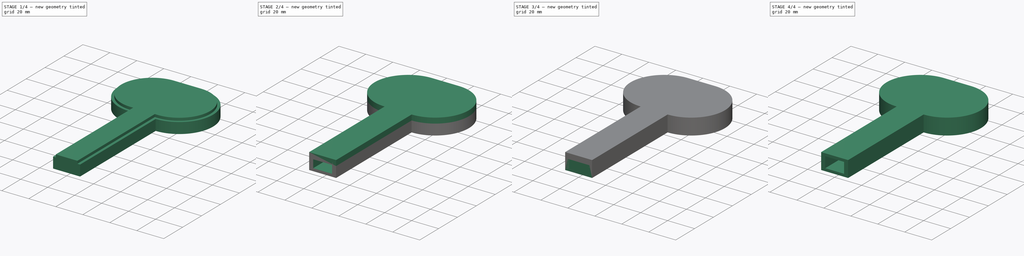
[diagram: build sequence overview — one tinted view per stage of 4, left to right]
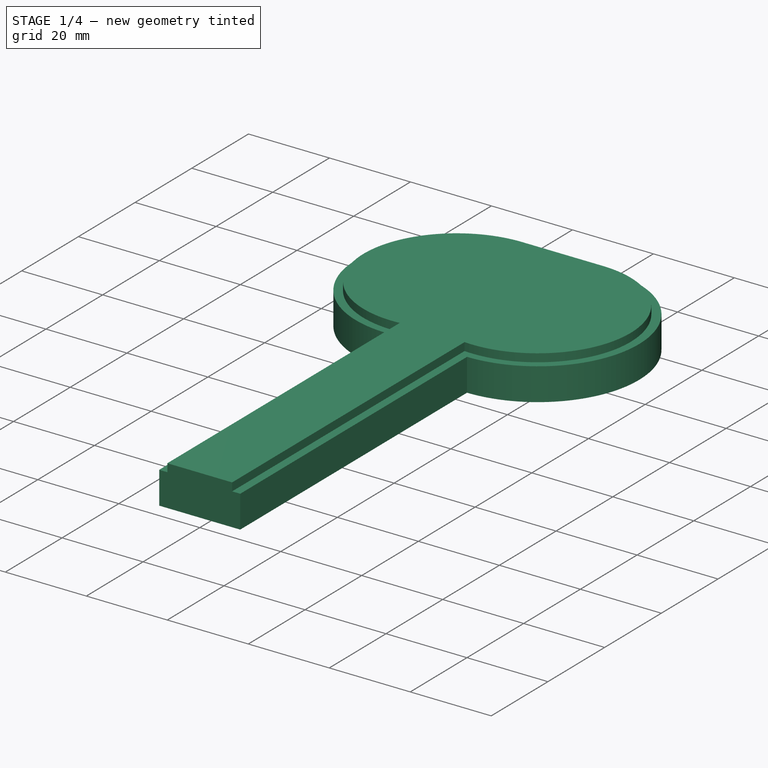
[diagram: stage 1 of 4 — iso view after this stage's code; geometry added in this stage tinted green]
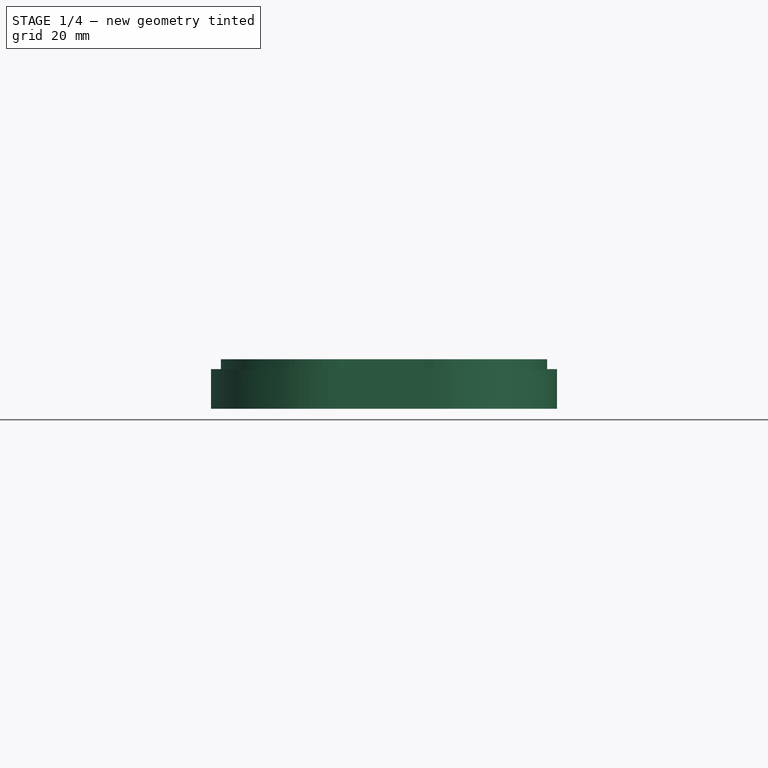
[diagram: stage 1 of 4 — front view after this stage's code; geometry added in this stage tinted green]
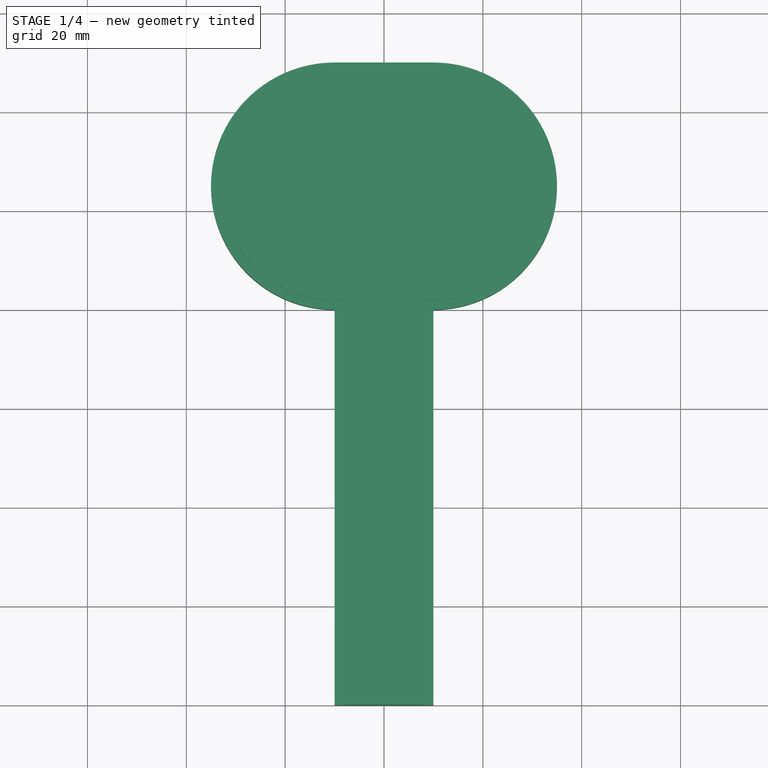
[diagram: stage 1 of 4 — top view after this stage's code; geometry added in this stage tinted green]
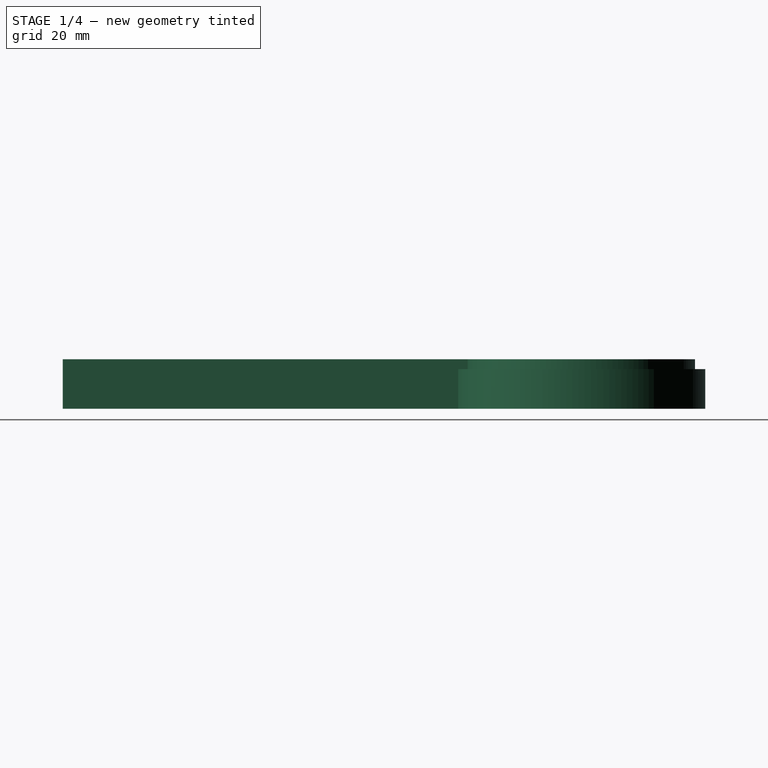
[diagram: stage 1 of 4 — right view after this stage's code; geometry added in this stage tinted green]
FCSTD DOCUMENT  (FreeCAD 0.19R24291 (Git))
Label: double_probe_body
License: All rights reserved
LicenseURL: http://en.wikipedia.org/wiki/All_rights_reserved
objects: Sketcher::SketchObject×8, PartDesign::Pad×5, PartDesign::Pocket×3, PartDesign::Body×3, Part::Cut×1
note: 28 computed .brp shape members not serialized (recipe doc carries the construction recipe); baked Part::Feature solids carry a one-line shape summary decoded from their .brp

FEATURE [Sketcher::SketchObject] Sketch005
  FullyConstrained = true
  MapMode = 5
  Support = -> [XY_Plane002]
  sketch-geometry (6):
    g0: ArcOfCircle CenterX=-10 CenterY=25 CenterZ=0 NormalX=0 NormalY=0 NormalZ=1 AngleXU=0 Radius=25 StartAngle=1.5708 EndAngle=4.71239
    g1: ArcOfCircle CenterX=10 CenterY=25 CenterZ=0 NormalX=0 NormalY=0 NormalZ=1 AngleXU=0 Radius=25 StartAngle=4.71239 EndAngle=7.85398
    g2: LineSegment StartX=-10 StartY=50 StartZ=0 EndX=10 EndY=50 EndZ=0
    g3: LineSegment StartX=10 StartY=0 StartZ=0 EndX=10 EndY=-80 EndZ=0
    g4: LineSegment StartX=10 StartY=-80 StartZ=0 EndX=-10 EndY=-80 EndZ=0
    g5: LineSegment StartX=-10 StartY=-80 StartZ=0 EndX=-10 EndY=0 EndZ=0
  constraints (16):
    c: Tangent(g0,g2) = 1.5708
    c: Tangent(g2,g1) = 1.5708
    c: Symmetric(g0,g1,g-2)
    c: Coincident(g3,g4)
    c: Coincident(g4,g5)
    c: Vertical(g3)
    c: Vertical(g5)
    c: Radius(g0) = 25
    c: DistanceX(g0,g1) = 20
    c: DistanceY(g5,g5) = 80
    c: Symmetric(g3,g4,g-2)
    c: Coincident(g3,g1)
    c: Coincident(g5,g0)
    c: Radius(g1) = 25
    c: DistanceX(g4,g4) = 20
    c: PointOnObject(g1,g-1)
FEATURE [PartDesign::Pad] Pad003
  Direction = (1,1,1)
  Length = 8
  Length2 = 100
  Profile = -> Sketch005
  Refine = true
  Type = 0
FEATURE [Sketcher::SketchObject] Sketch006
  AttachmentOffset = pos=(0,0,10) rot=(0,0,1;0rad)
  ExternalGeometry = -> [Pad003]
  FullyConstrained = true
  MapMode = 5
  Placement = pos=(0,0,10) rot=(0,0,1;0rad)
  Support = -> [XY_Plane002]
  sketch-geometry (6):
    g0: ArcOfCircle CenterX=-10 CenterY=24.7945 CenterZ=0 NormalX=0 NormalY=0 NormalZ=1 AngleXU=0 Radius=22 StartAngle=1.5708 EndAngle=4.84918
    g1: ArcOfCircle CenterX=10 CenterY=24.7945 CenterZ=0 NormalX=0 NormalY=0 NormalZ=1 AngleXU=0 Radius=22 StartAngle=4.5756 EndAngle=7.85398
    g2: LineSegment StartX=-10 StartY=46.7945 StartZ=0 EndX=10 EndY=46.7945 EndZ=0
    g3: LineSegment StartX=7 StartY=3 StartZ=0 EndX=7 EndY=-80 EndZ=0
    g4: LineSegment StartX=7 StartY=-80 StartZ=0 EndX=-7 EndY=-80 EndZ=0
    g5: LineSegment StartX=-7 StartY=-80 StartZ=0 EndX=-7 EndY=3 EndZ=0
  constraints (16):
    c: Tangent(g0,g2) = 1.5708
    c: Tangent(g2,g1) = 1.5708
    c: Symmetric(g0,g1,g-2)
    c: Coincident(g3,g4)
    c: Coincident(g4,g5)
    c: Vertical(g3)
    c: Vertical(g5)
    c: Radius(g0) = 22
    c: DistanceX(g0,g1) = 20
    c: DistanceY(g5,g5) = 83
    c: Symmetric(g3,g4,g-2)
    c: Radius(g1) = 22
    c: DistanceX(g4,g4) = 14
    c: DistanceY(g3,g-4) = 0
    c: Coincident(g3,g1)
    c: Coincident(g0,g5)
FEATURE [Sketcher::SketchObject] Sketch007
  ExternalGeometry = -> [Pad003]
  FullyConstrained = true
  MapMode = 5
  Support = -> [XY_Plane002]
  sketch-geometry (6):
    g0: ArcOfCircle CenterX=-10 CenterY=24.9129 CenterZ=0 NormalX=0 NormalY=0 NormalZ=1 AngleXU=0 Radius=23 StartAngle=1.5708 EndAngle=4.79946
    g1: ArcOfCircle CenterX=10 CenterY=24.9129 CenterZ=0 NormalX=0 NormalY=0 NormalZ=1 AngleXU=0 Radius=23 StartAngle=4.62532 EndAngle=7.85398
    g2: LineSegment StartX=-10 StartY=47.9129 StartZ=0 EndX=10 EndY=47.9129 EndZ=0
    g3: LineSegment StartX=8 StartY=2 StartZ=0 EndX=8 EndY=-80 EndZ=0
    g4: LineSegment StartX=8 StartY=-80 StartZ=0 EndX=-8 EndY=-80 EndZ=0
    g5: LineSegment StartX=-8 StartY=-80 StartZ=0 EndX=-8 EndY=2 EndZ=0
  constraints (16):
    c: Tangent(g0,g2) = 1.5708
    c: Tangent(g2,g1) = 1.5708
    c: Symmetric(g0,g1,g-2)
    c: Coincident(g3,g4)
    c: Coincident(g4,g5)
    c: Vertical(g3)
    c: Vertical(g5)
    c: Radius(g0) = 23
    c: DistanceX(g0,g1) = 20
    c: DistanceY(g5,g5) = 82
    c: Symmetric(g3,g4,g-2)
    c: Radius(g1) = 23
    c: DistanceX(g4,g4) = 16
    c: DistanceY(g3,g-4) = 0
    c: Coincident(g3,g1)
    c: Coincident(g0,g5)
FEATURE [PartDesign::Pad] Pad004
  BaseFeature = -> Pad003
  Direction = (1,1,1)
  Length = 10
  Length2 = 100
  Profile = -> Sketch007
  Refine = true
  Type = 0
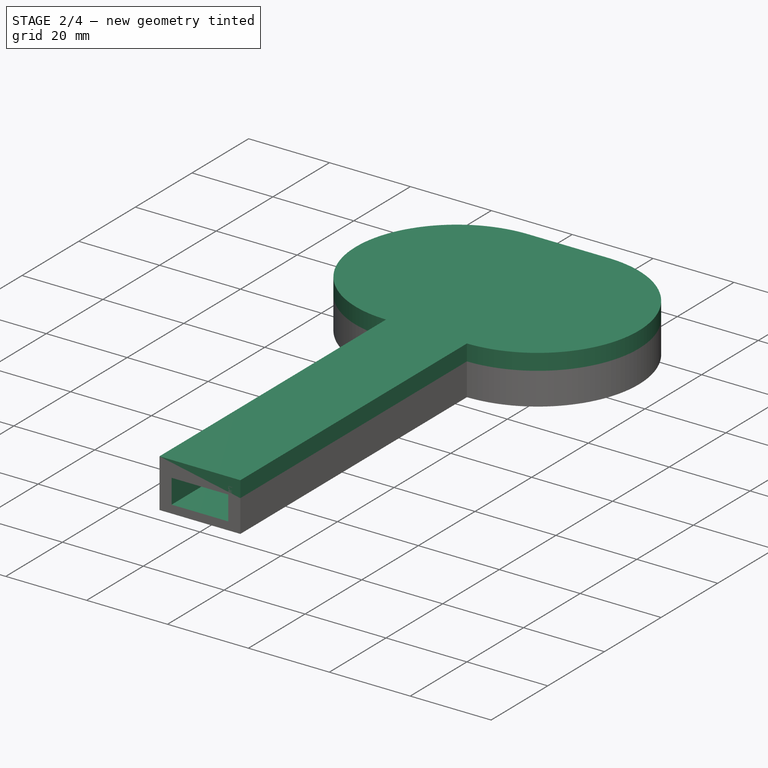
[diagram: stage 2 of 4 — iso view after this stage's code; geometry added in this stage tinted green]
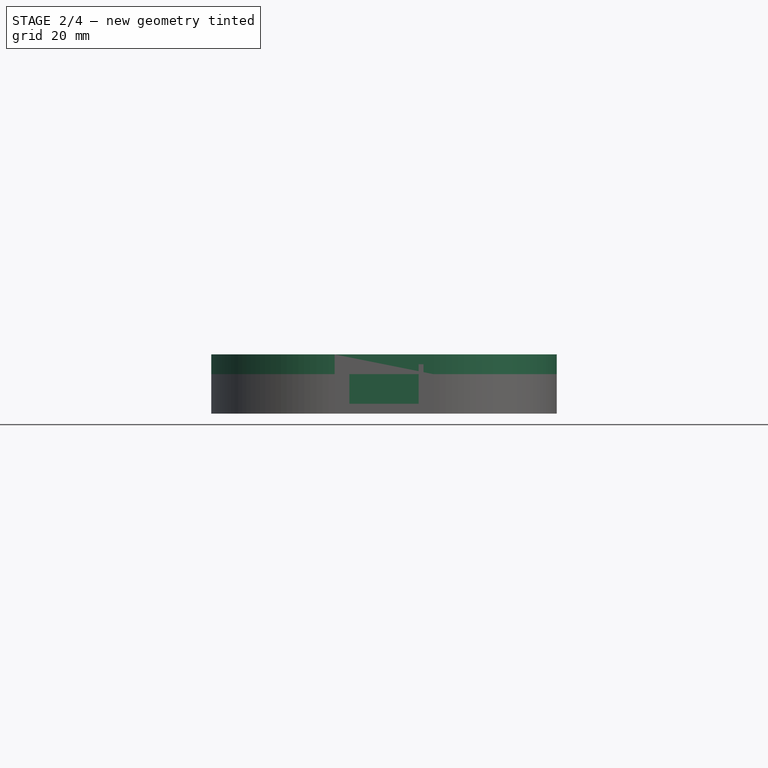
[diagram: stage 2 of 4 — front view after this stage's code; geometry added in this stage tinted green]
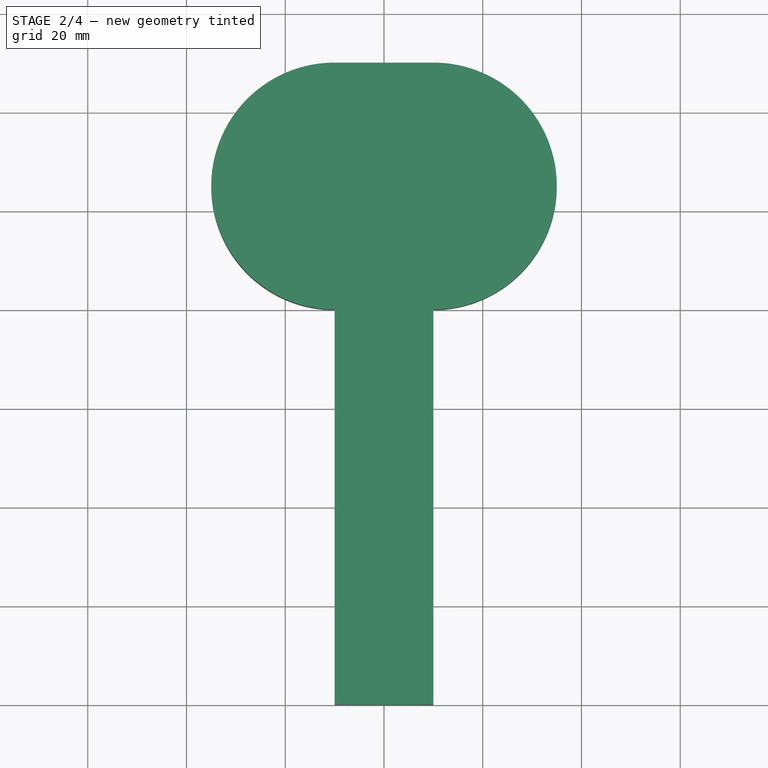
[diagram: stage 2 of 4 — top view after this stage's code; geometry added in this stage tinted green]
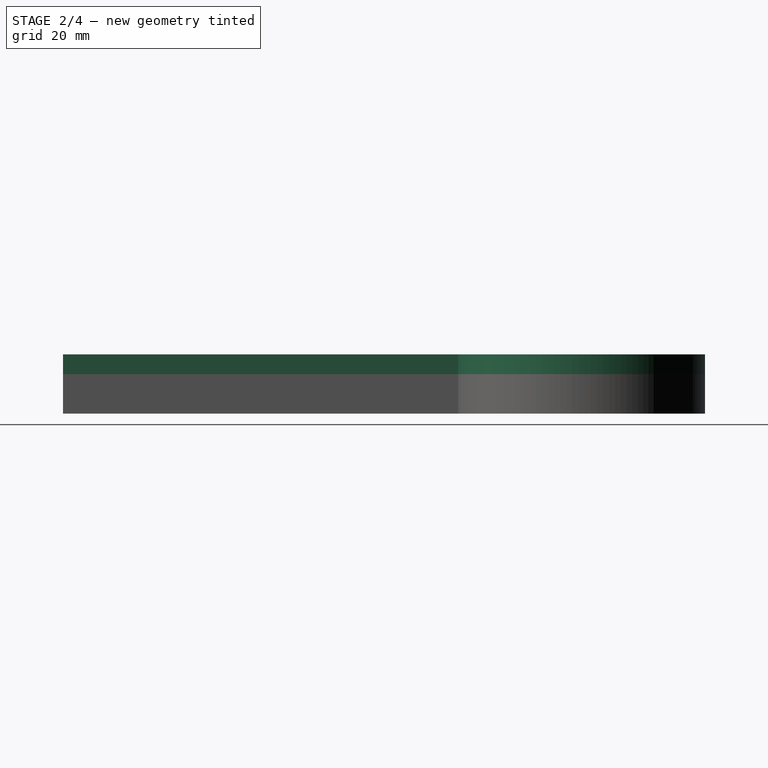
[diagram: stage 2 of 4 — right view after this stage's code; geometry added in this stage tinted green]
FEATURE [PartDesign::Body] Body  label="Body_groove"
  Group = -> [Sketch,Pad,Sketch001,Pad001,Sketch002,Pocket]
  Origin = -> Origin
  Tip = -> Pocket
FEATURE [Sketcher::SketchObject] Sketch003
  AttachmentOffset = pos=(0,0,8) rot=(0,0,1;0rad)
  FullyConstrained = true
  MapMode = 5
  Placement = pos=(0,0,8) rot=(0,0,1;0rad)
  Support = -> [XY_Plane001]
  sketch-geometry (6):
    g0: ArcOfCircle CenterX=-10 CenterY=25 CenterZ=0 NormalX=0 NormalY=0 NormalZ=1 AngleXU=0 Radius=25 StartAngle=1.5708 EndAngle=4.71239
    g1: ArcOfCircle CenterX=10 CenterY=25 CenterZ=0 NormalX=0 NormalY=0 NormalZ=1 AngleXU=0 Radius=25 StartAngle=4.71239 EndAngle=7.85398
    g2: LineSegment StartX=-10 StartY=50 StartZ=0 EndX=10 EndY=50 EndZ=0
    g3: LineSegment StartX=10 StartY=0 StartZ=0 EndX=10 EndY=-80 EndZ=0
    g4: LineSegment StartX=10 StartY=-80 StartZ=0 EndX=-10 EndY=-80 EndZ=0
    g5: LineSegment StartX=-10 StartY=-80 StartZ=0 EndX=-10 EndY=0 EndZ=0
  constraints (16):
    c: Tangent(g0,g2) = 1.5708
    c: Tangent(g2,g1) = 1.5708
    c: Symmetric(g0,g1,g-2)
    c: Coincident(g3,g4)
    c: Coincident(g4,g5)
    c: Vertical(g3)
    c: Vertical(g5)
    c: Radius(g0) = 25
    c: DistanceX(g0,g1) = 20
    c: DistanceY(g5,g5) = 80
    c: Symmetric(g3,g4,g-2)
    c: Coincident(g3,g1)
    c: Coincident(g5,g0)
    c: Radius(g1) = 25
    c: DistanceX(g4,g4) = 20
    c: PointOnObject(g1,g-1)
FEATURE [PartDesign::Pad] Pad002
  Direction = (1,1,1)
  Length = 4
  Length2 = 100
  Profile = -> Sketch003
  Refine = true
  Type = 0
FEATURE [PartDesign::Pocket] Pocket002
  BaseFeature = -> Pad004
  Length = 8
  Length2 = 100
  Profile = -> Sketch006
  Refine = true
  Type = 0
FEATURE [PartDesign::Body] Body002  label="Body"
  Group = -> [Sketch005,Pad003,Sketch007,Pad004,Sketch006,Pocket002]
  Origin = -> Origin002
  Tip = -> Pocket002
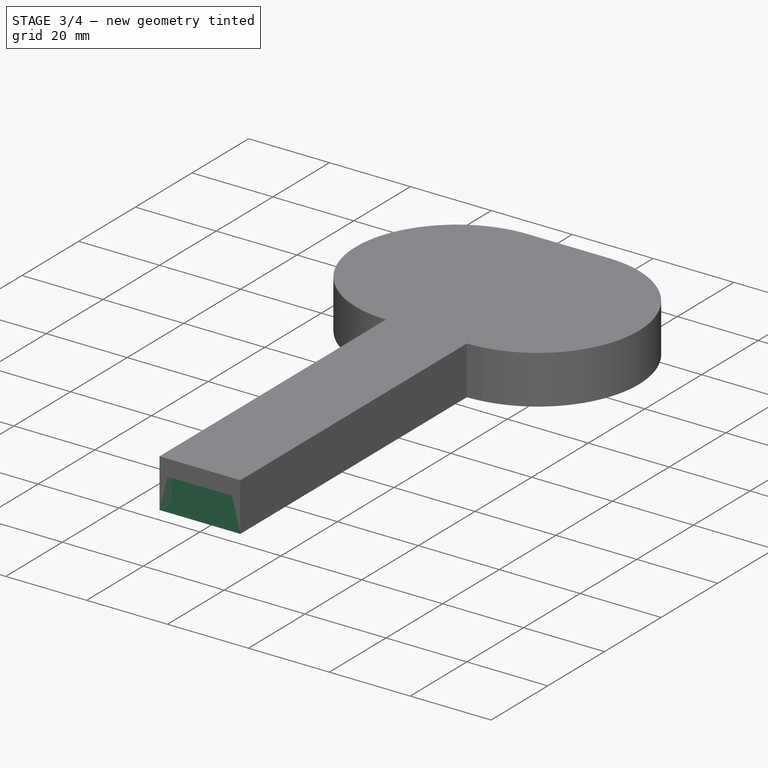
[diagram: stage 3 of 4 — iso view after this stage's code; geometry added in this stage tinted green]
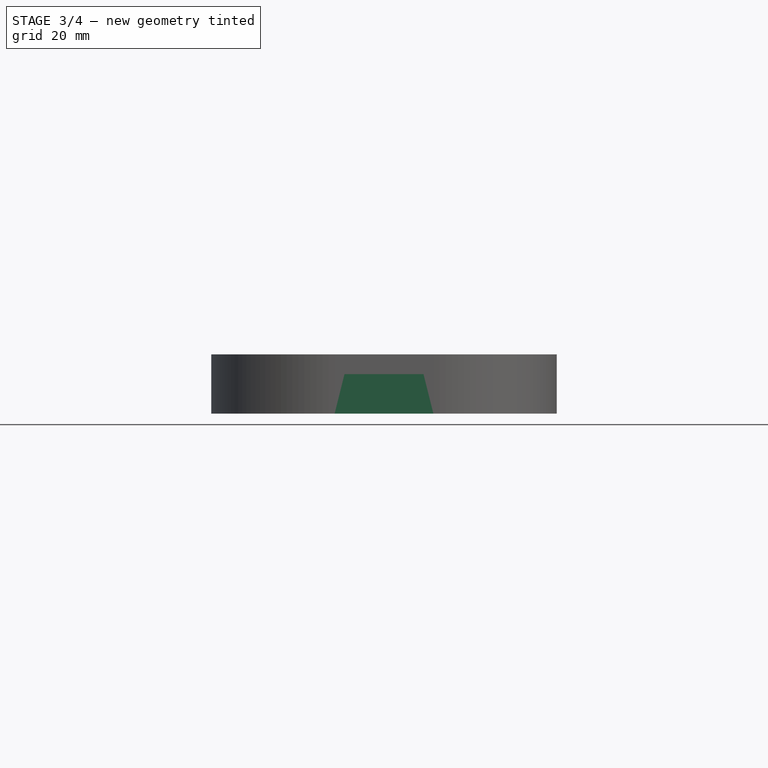
[diagram: stage 3 of 4 — front view after this stage's code; geometry added in this stage tinted green]
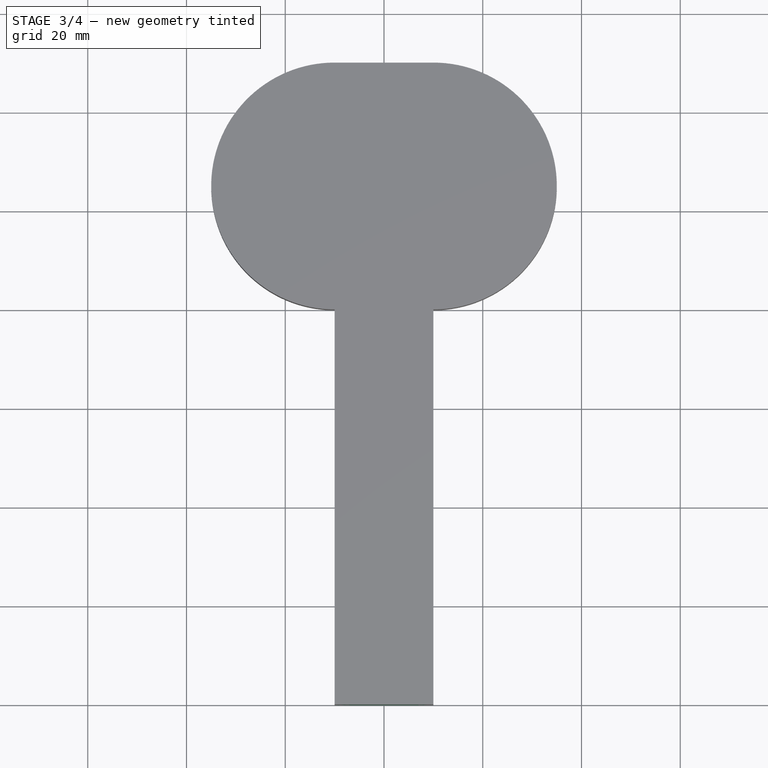
[diagram: stage 3 of 4 — top view after this stage's code; geometry added in this stage tinted green]
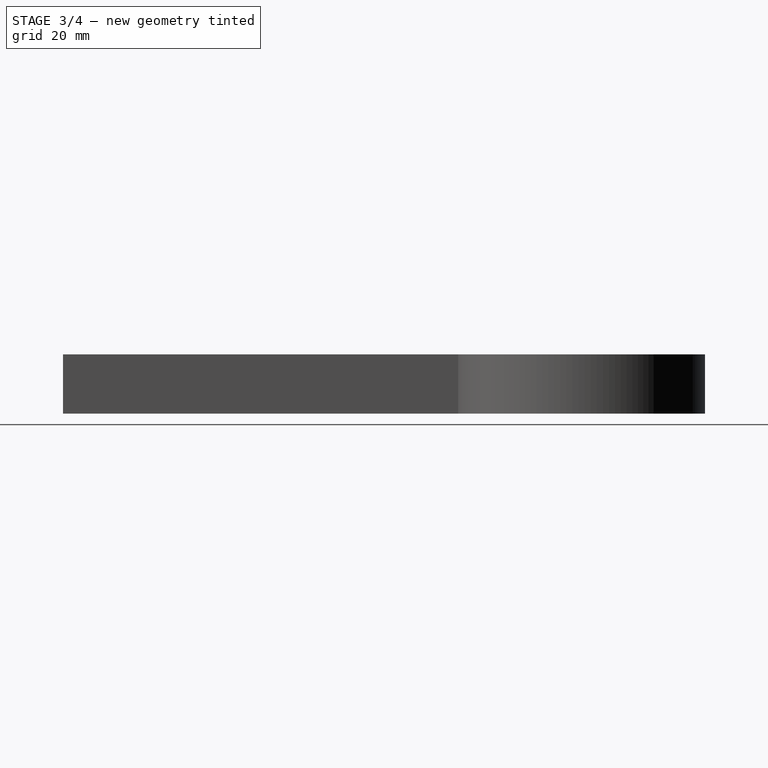
[diagram: stage 3 of 4 — right view after this stage's code; geometry added in this stage tinted green]
FEATURE [Sketcher::SketchObject] Sketch
  FullyConstrained = true
  MapMode = 5
  Support = -> [XY_Plane]
  sketch-geometry (6):
    g0: ArcOfCircle CenterX=-10 CenterY=25 CenterZ=0 NormalX=0 NormalY=0 NormalZ=1 AngleXU=0 Radius=25 StartAngle=1.5708 EndAngle=4.71239
    g1: ArcOfCircle CenterX=10 CenterY=25 CenterZ=0 NormalX=0 NormalY=0 NormalZ=1 AngleXU=0 Radius=25 StartAngle=4.71239 EndAngle=7.85398
    g2: LineSegment StartX=-10 StartY=50 StartZ=0 EndX=10 EndY=50 EndZ=0
    g3: LineSegment StartX=10 StartY=0 StartZ=0 EndX=10 EndY=-80 EndZ=0
    g4: LineSegment StartX=10 StartY=-80 StartZ=0 EndX=-10 EndY=-80 EndZ=0
    g5: LineSegment StartX=-10 StartY=-80 StartZ=0 EndX=-10 EndY=0 EndZ=0
  constraints (16):
    c: Tangent(g0,g2) = 1.5708
    c: Tangent(g2,g1) = 1.5708
    c: Symmetric(g0,g1,g-2)
    c: Coincident(g3,g4)
    c: Coincident(g4,g5)
    c: Vertical(g3)
    c: Vertical(g5)
    c: Radius(g0) = 25
    c: DistanceX(g0,g1) = 20
    c: DistanceY(g5,g5) = 80
    c: Symmetric(g3,g4,g-2)
    c: Coincident(g3,g1)
    c: Coincident(g5,g0)
    c: Radius(g1) = 25
    c: DistanceX(g4,g4) = 20
    c: PointOnObject(g1,g-1)
FEATURE [PartDesign::Pad] Pad
  Direction = (1,1,1)
  Length = 8
  Length2 = 100
  Profile = -> Sketch
  Refine = true
  Type = 0
FEATURE [Sketcher::SketchObject] Sketch001
  ExternalGeometry = -> [Pad]
  FullyConstrained = true
  MapMode = 5
  Support = -> [XY_Plane]
  sketch-geometry (6):
    g0: ArcOfCircle CenterX=-10 CenterY=24.9129 CenterZ=0 NormalX=0 NormalY=0 NormalZ=1 AngleXU=0 Radius=23 StartAngle=1.5708 EndAngle=4.79946
    g1: ArcOfCircle CenterX=10 CenterY=24.9129 CenterZ=0 NormalX=0 NormalY=0 NormalZ=1 AngleXU=0 Radius=23 StartAngle=4.62532 EndAngle=7.85398
    g2: LineSegment StartX=-10 StartY=47.9129 StartZ=0 EndX=10 EndY=47.9129 EndZ=0
    g3: LineSegment StartX=8 StartY=2 StartZ=0 EndX=8 EndY=-80 EndZ=0
    g4: LineSegment StartX=8 StartY=-80 StartZ=0 EndX=-8 EndY=-80 EndZ=0
    g5: LineSegment StartX=-8 StartY=-80 StartZ=0 EndX=-8 EndY=2 EndZ=0
  constraints (16):
    c: Tangent(g0,g2) = 1.5708
    c: Tangent(g2,g1) = 1.5708
    c: Symmetric(g0,g1,g-2)
    c: Coincident(g3,g4)
    c: Coincident(g4,g5)
    c: Vertical(g3)
    c: Vertical(g5)
    c: Radius(g0) = 23
    c: DistanceX(g0,g1) = 20
    c: DistanceY(g5,g5) = 82
    c: Symmetric(g3,g4,g-2)
    c: Radius(g1) = 23
    c: DistanceX(g4,g4) = 16
    c: DistanceY(g3,g-4) = 0
    c: Coincident(g3,g1)
    c: Coincident(g0,g5)
FEATURE [PartDesign::Pad] Pad001
  BaseFeature = -> Pad
  Direction = (1,1,1)
  Length = 10
  Length2 = 100
  Profile = -> Sketch001
  Refine = true
  Type = 0
FEATURE [Sketcher::SketchObject] Sketch004
  AttachmentOffset = pos=(0,0,8) rot=(0,0,1;0rad)
  ExternalGeometry = -> [Pad002]
  FullyConstrained = true
  MapMode = 5
  Placement = pos=(0,0,8) rot=(0,0,1;0rad)
  Support = -> [XY_Plane001]
  sketch-geometry (6):
    g0: ArcOfCircle CenterX=-10 CenterY=24.7945 CenterZ=0 NormalX=0 NormalY=0 NormalZ=1 AngleXU=0 Radius=22 StartAngle=1.5708 EndAngle=4.84918
    g1: ArcOfCircle CenterX=10 CenterY=24.7945 CenterZ=0 NormalX=0 NormalY=0 NormalZ=1 AngleXU=0 Radius=22 StartAngle=4.5756 EndAngle=7.85398
    g2: LineSegment StartX=-10 StartY=46.7945 StartZ=0 EndX=10 EndY=46.7945 EndZ=0
    g3: LineSegment StartX=7 StartY=3 StartZ=0 EndX=7 EndY=-80 EndZ=0
    g4: LineSegment StartX=7 StartY=-80 StartZ=0 EndX=-7 EndY=-80 EndZ=0
    g5: LineSegment StartX=-7 StartY=-80 StartZ=0 EndX=-7 EndY=3 EndZ=0
  constraints (16):
    c: Tangent(g0,g2) = 1.5708
    c: Tangent(g2,g1) = 1.5708
    c: Symmetric(g0,g1,g-2)
    c: Coincident(g3,g4)
    c: Coincident(g4,g5)
    c: Vertical(g3)
    c: Vertical(g5)
    c: Radius(g0) = 22
    c: DistanceX(g0,g1) = 20
    c: DistanceY(g5,g5) = 83
    c: Symmetric(g3,g4,g-2)
    c: Radius(g1) = 22
    c: DistanceX(g4,g4) = 14
    c: DistanceY(g3,g-4) = 0
    c: Coincident(g3,g1)
    c: Coincident(g0,g5)
FEATURE [PartDesign::Pocket] Pocket001
  BaseFeature = -> Pad002
  Length = 2
  Length2 = 100
  Profile = -> Sketch004
  Refine = true
  Reversed = true
  Type = 0
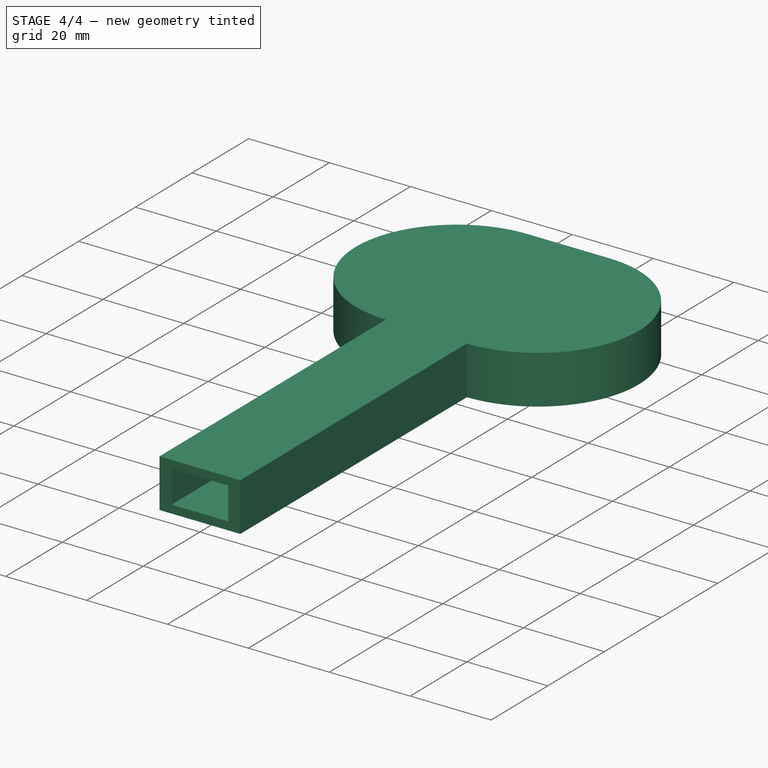
[diagram: stage 4 of 4 — iso view after this stage's code; geometry added in this stage tinted green]
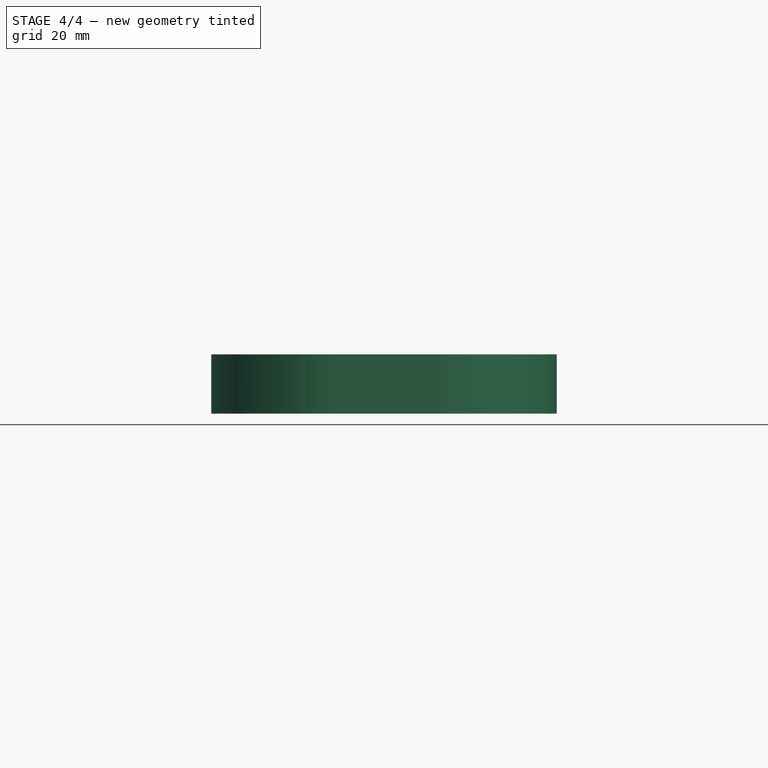
[diagram: stage 4 of 4 — front view after this stage's code; geometry added in this stage tinted green]
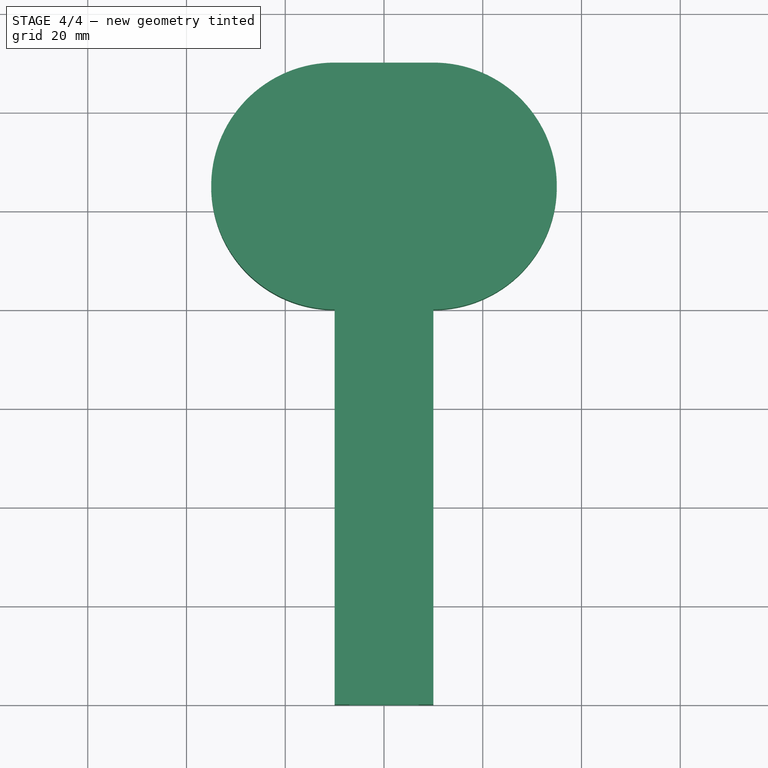
[diagram: stage 4 of 4 — top view after this stage's code; geometry added in this stage tinted green]
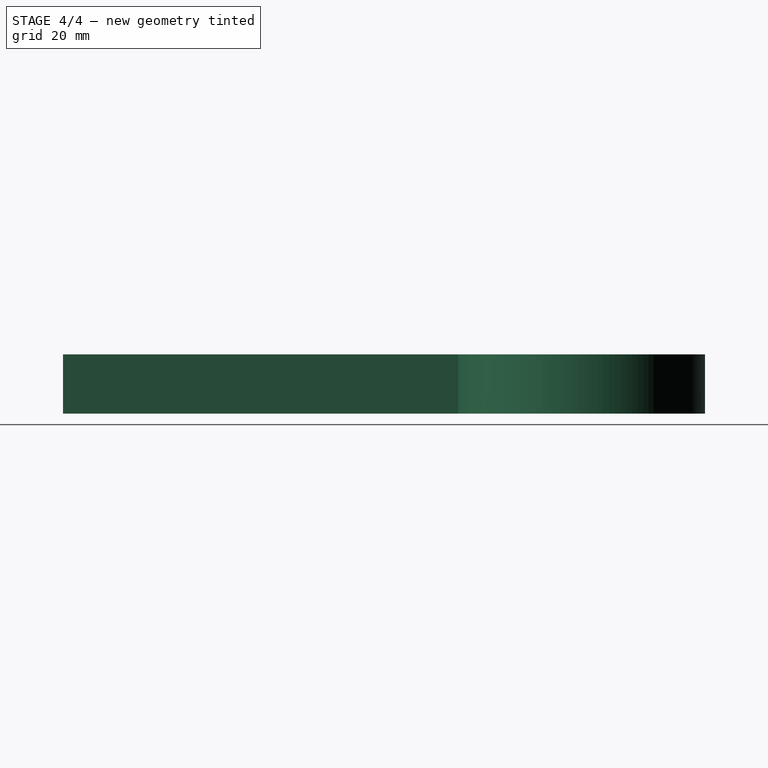
[diagram: stage 4 of 4 — right view after this stage's code; geometry added in this stage tinted green]
FEATURE [Sketcher::SketchObject] Sketch002
  AttachmentOffset = pos=(0,0,10) rot=(0,0,1;0rad)
  ExternalGeometry = -> [Pad]
  FullyConstrained = true
  MapMode = 5
  Placement = pos=(0,0,10) rot=(0,0,1;0rad)
  Support = -> [XY_Plane]
  sketch-geometry (6):
    g0: ArcOfCircle CenterX=-10 CenterY=24.7945 CenterZ=0 NormalX=0 NormalY=0 NormalZ=1 AngleXU=0 Radius=22 StartAngle=1.5708 EndAngle=4.84918
    g1: ArcOfCircle CenterX=10 CenterY=24.7945 CenterZ=0 NormalX=0 NormalY=0 NormalZ=1 AngleXU=0 Radius=22 StartAngle=4.5756 EndAngle=7.85398
    g2: LineSegment StartX=-10 StartY=46.7945 StartZ=0 EndX=10 EndY=46.7945 EndZ=0
    g3: LineSegment StartX=7 StartY=3 StartZ=0 EndX=7 EndY=-80 EndZ=0
    g4: LineSegment StartX=7 StartY=-80 StartZ=0 EndX=-7 EndY=-80 EndZ=0
    g5: LineSegment StartX=-7 StartY=-80 StartZ=0 EndX=-7 EndY=3 EndZ=0
  constraints (16):
    c: Tangent(g0,g2) = 1.5708
    c: Tangent(g2,g1) = 1.5708
    c: Symmetric(g0,g1,g-2)
    c: Coincident(g3,g4)
    c: Coincident(g4,g5)
    c: Vertical(g3)
    c: Vertical(g5)
    c: Radius(g0) = 22
    c: DistanceX(g0,g1) = 20
    c: DistanceY(g5,g5) = 83
    c: Symmetric(g3,g4,g-2)
    c: Radius(g1) = 22
    c: DistanceX(g4,g4) = 14
    c: DistanceY(g3,g-4) = 0
    c: Coincident(g3,g1)
    c: Coincident(g0,g5)
FEATURE [PartDesign::Pocket] Pocket
  BaseFeature = -> Pad001
  Length = 8
  Length2 = 100
  Profile = -> Sketch002
  Refine = true
  Type = 0
FEATURE [PartDesign::Body] Body001  label="Cover_nogroove"
  Group = -> [Sketch003,Pad002,Sketch004,Pocket001]
  Origin = -> Origin001
  Tip = -> Pocket001
FEATURE [Part::Cut] Cut  label="Cover"
  Base = -> Body001
  Refine = true
  Tool = -> Body
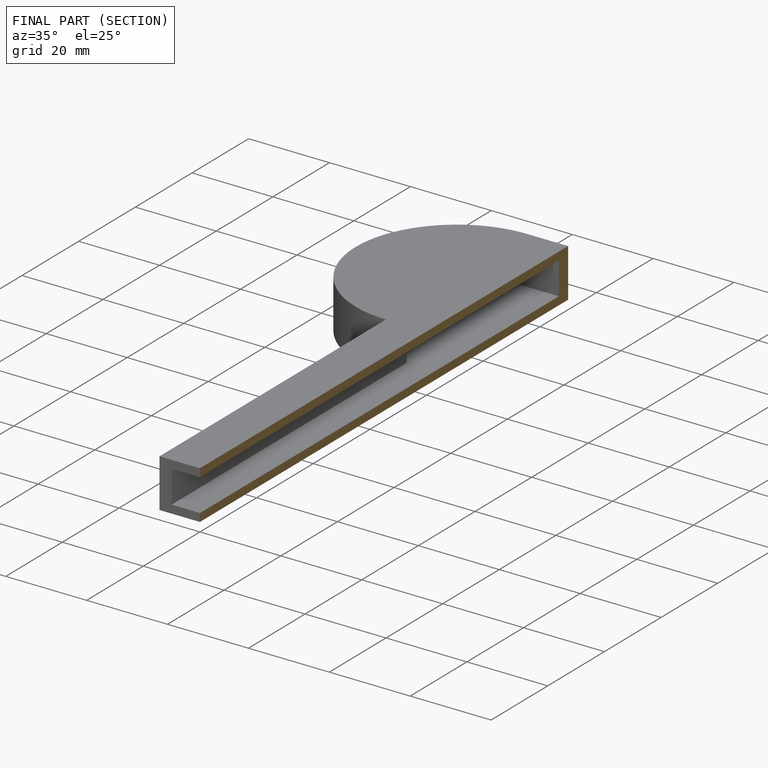
[diagram: finished part — half-section view (interior)]
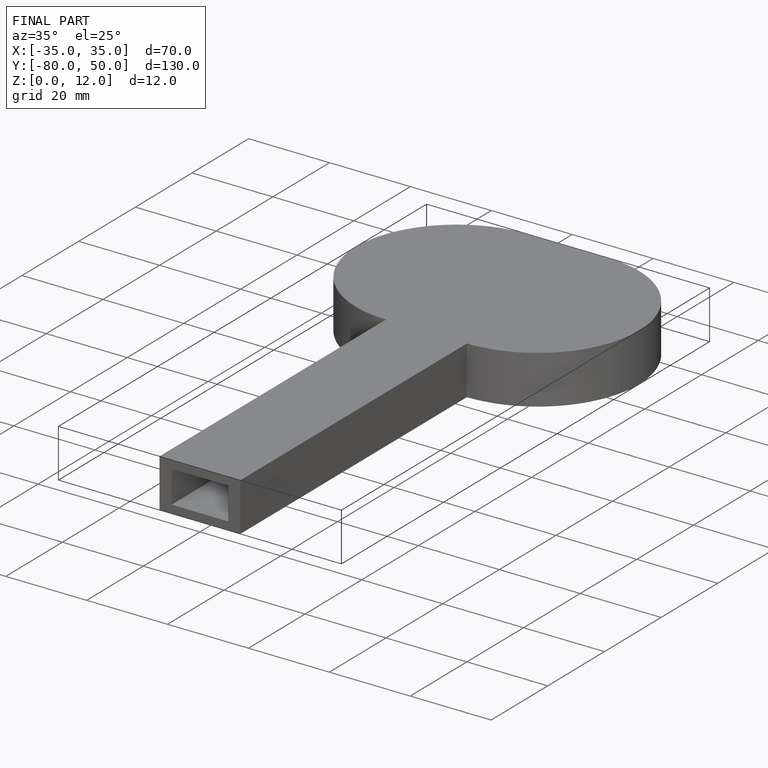
[diagram: finished part — iso view with bounding-box wireframe]
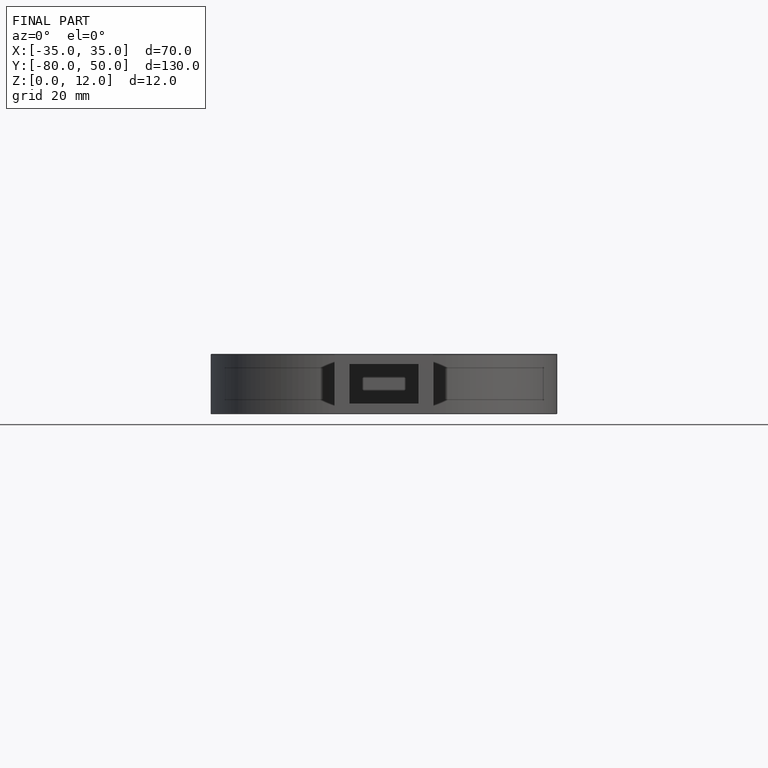
[diagram: finished part — front view with bounding-box wireframe]
